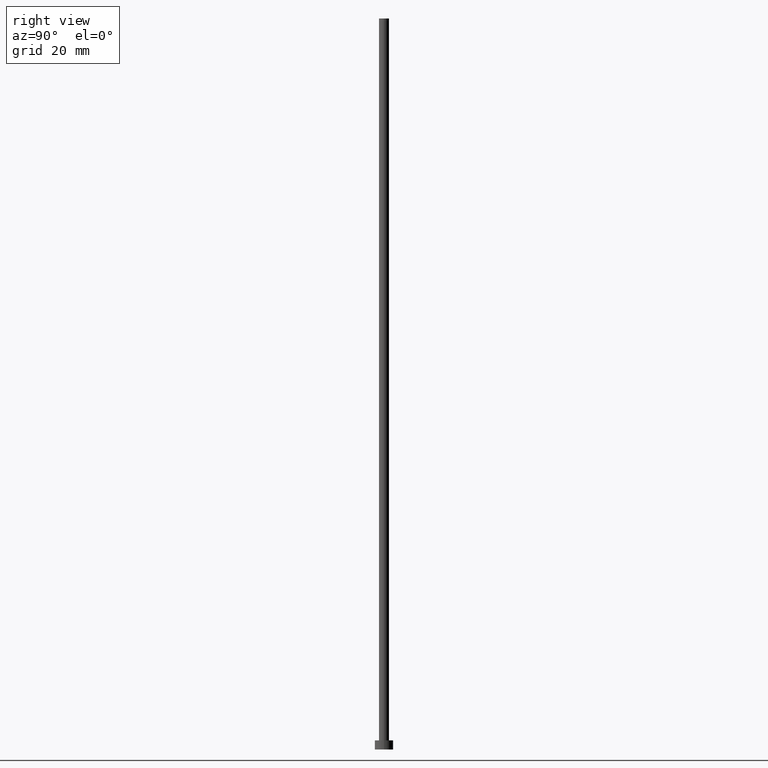
[diagram: clean part render]
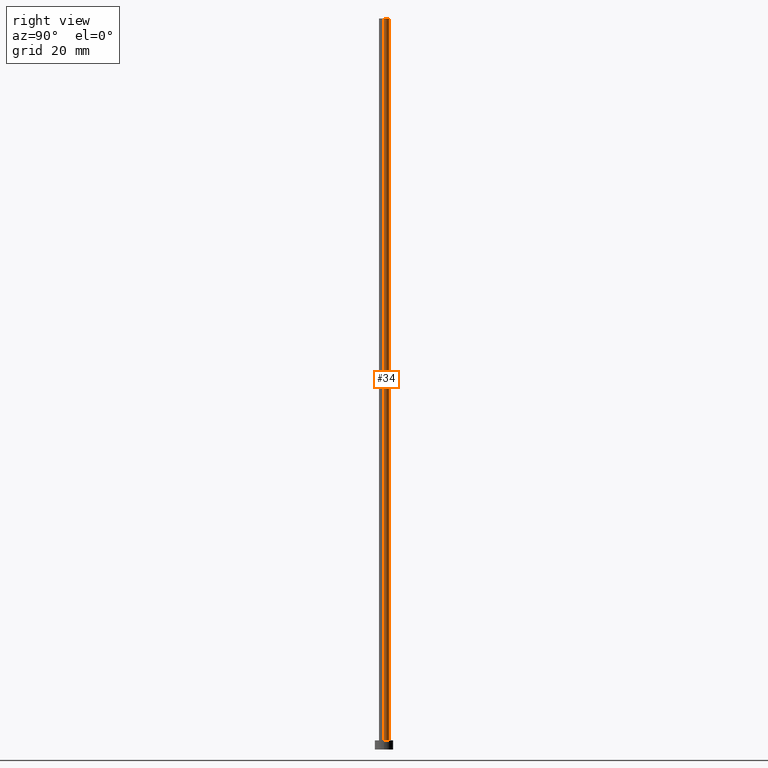
[diagram: same view with one face highlighted and labeled with its STEP entity id]
A machine part, right view. The second image highlights one B-rep face of the part: STEP entity #34.
In plain terms, the highlighted cylindrical surface (edge-blend (fillet) strip) has radius 1.1 mm, axis along (-0, -0, -1).
Its self-contained STEP definition (entity closure, byte-faithful):
#7 = DIRECTION ( 'NONE',  ( 0.000000000000000000, 0.000000000000000000, 1.000000000000000000 ) ) ;
#26 = CARTESIAN_POINT ( 'NONE',  ( 0.000000000000000000, 0.000000000000000000, 160.0000000000000000 ) ) ;
#28 = CARTESIAN_POINT ( 'NONE',  ( 1.100000000000000089, 1.347111479062088503E-16, 160.0000000000000000 ) ) ;
#30 = CARTESIAN_POINT ( 'NONE',  ( -1.100000000000000089, 0.000000000000000000, 160.0000000000000000 ) ) ;
#34 = ADVANCED_FACE ( 'NONE', ( #195 ), #170, .T. ) ;
#39 = VERTEX_POINT ( 'NONE', #224 ) ;
#42 = VECTOR ( 'NONE', #240, 1000.000000000000000 ) ;
#48 = DIRECTION ( 'NONE',  ( -1.000000000000000000, 0.000000000000000000, 0.000000000000000000 ) ) ;
#50 = LINE ( 'NONE', #92, #42 ) ;
#54 = ORIENTED_EDGE ( 'NONE', *, *, #226, .T. ) ;
#73 = EDGE_CURVE ( 'NONE', #215, #254, #121, .T. ) ;
#75 = CARTESIAN_POINT ( 'NONE',  ( 0.000000000000000000, 0.000000000000000000, 160.0000000000000000 ) ) ;
#81 = CARTESIAN_POINT ( 'NONE',  ( 1.100000000000000089, 1.347111479062088503E-16, 160.0000000000000000 ) ) ;
#92 = CARTESIAN_POINT ( 'NONE',  ( -1.100000000000000089, 0.000000000000000000, 160.0000000000000000 ) ) ;
#95 = VECTOR ( 'NONE', #181, 1000.000000000000000 ) ;
#114 = EDGE_CURVE ( 'NONE', #215, #253, #204, .T. ) ;
#121 = CIRCLE ( 'NONE', #245, 1.100000000000000089 ) ;
#126 = EDGE_CURVE ( 'NONE', #254, #39, #50, .T. ) ;
#137 = CARTESIAN_POINT ( 'NONE',  ( 1.100000000000000089, 1.347111479062088503E-16, 2.000000000000000000 ) ) ;
#138 = DIRECTION ( 'NONE',  ( 1.000000000000000000, 0.000000000000000000, 0.000000000000000000 ) ) ;
#148 = DIRECTION ( 'NONE',  ( -0.000000000000000000, -0.000000000000000000, -1.000000000000000000 ) ) ;
#163 = EDGE_LOOP ( 'NONE', ( #210, #178, #54, #164 ) ) ;
#164 = ORIENTED_EDGE ( 'NONE', *, *, #126, .F. ) ;
#170 = CYLINDRICAL_SURFACE ( 'NONE', #217, 1.100000000000000089 ) ;
#178 = ORIENTED_EDGE ( 'NONE', *, *, #114, .T. ) ;
#181 = DIRECTION ( 'NONE',  ( -0.000000000000000000, -0.000000000000000000, -1.000000000000000000 ) ) ;
#184 = DIRECTION ( 'NONE',  ( 1.000000000000000000, 0.000000000000000000, 0.000000000000000000 ) ) ;
#195 = FACE_OUTER_BOUND ( 'NONE', #163, .T. ) ;
#204 = LINE ( 'NONE', #28, #95 ) ;
#210 = ORIENTED_EDGE ( 'NONE', *, *, #73, .F. ) ;
#215 = VERTEX_POINT ( 'NONE', #81 ) ;
#217 = AXIS2_PLACEMENT_3D ( 'NONE', #75, #148, #48 ) ;
#222 = DIRECTION ( 'NONE',  ( 0.000000000000000000, 0.000000000000000000, 1.000000000000000000 ) ) ;
#224 = CARTESIAN_POINT ( 'NONE',  ( -1.100000000000000089, 0.000000000000000000, 2.000000000000000000 ) ) ;
#226 = EDGE_CURVE ( 'NONE', #253, #39, #248, .T. ) ;
#240 = DIRECTION ( 'NONE',  ( -0.000000000000000000, -0.000000000000000000, -1.000000000000000000 ) ) ;
#241 = CARTESIAN_POINT ( 'NONE',  ( 0.000000000000000000, 0.000000000000000000, 2.000000000000000000 ) ) ;
#245 = AXIS2_PLACEMENT_3D ( 'NONE', #26, #222, #184 ) ;
#247 = AXIS2_PLACEMENT_3D ( 'NONE', #241, #7, #138 ) ;
#248 = CIRCLE ( 'NONE', #247, 1.100000000000000089 ) ;
#253 = VERTEX_POINT ( 'NONE', #137 ) ;
#254 = VERTEX_POINT ( 'NONE', #30 ) ;